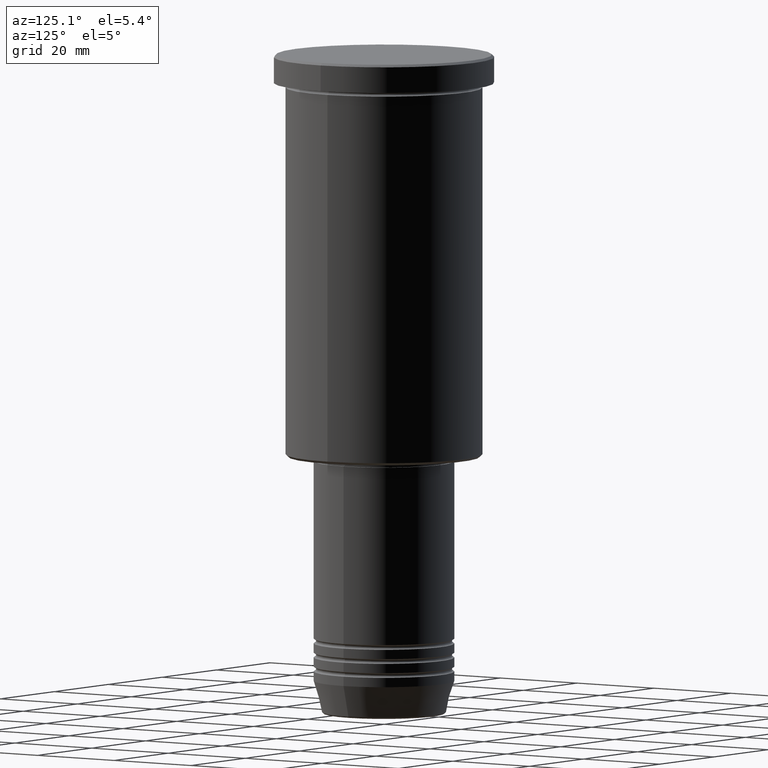
[diagram: clean part render]
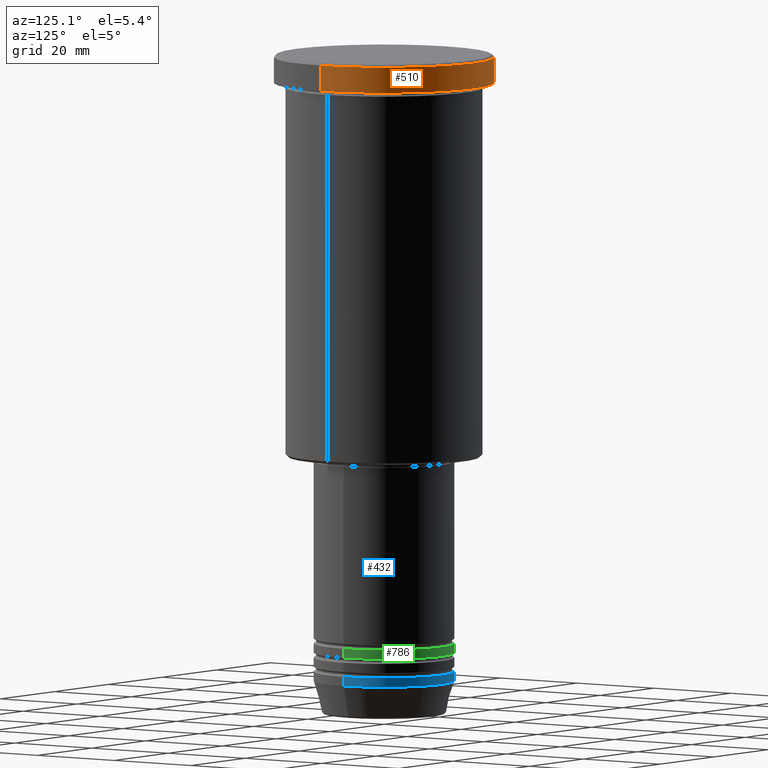
[diagram: same view with three faces highlighted in distinct colors, each labeled with its STEP entity id]
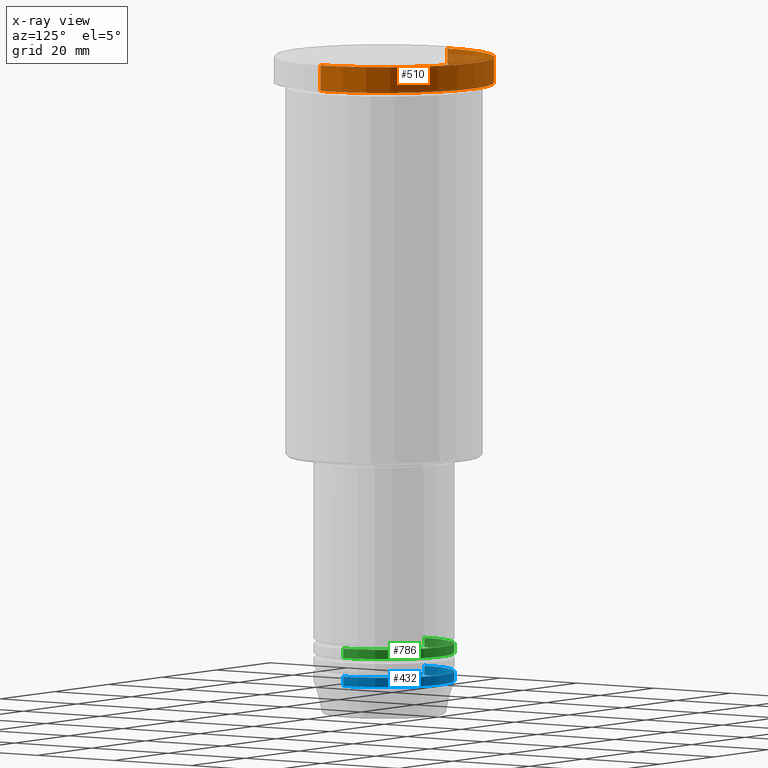
[diagram: x-ray of the same camera — body ghosted, the three highlighted faces saturated]
A machine part, auxiliary view with three faces highlighted in distinct colors.
The next image is the same camera in x-ray (body ghosted, the three faces saturated) — at least one of them is partly hidden behind the body in this view.
Their STEP definitions:

[orange] entity #510 — the highlighted cylindrical surface (partial cylindrical patch) has radius 23.5 mm, axis along (-0, -0, 1).
#2 = CARTESIAN_POINT ( 'NONE',  ( -23.50000000000000000, 2.877919977996280320E-15, -0.4999999999999726885 ) ) ;
#48 = VERTEX_POINT ( 'NONE', #2 ) ;
#54 = VERTEX_POINT ( 'NONE', #271 ) ;
#69 = FACE_OUTER_BOUND ( 'NONE', #240, .T. ) ;
#88 = DIRECTION ( 'NONE',  ( 1.000000000000000000, 0.000000000000000000, 0.000000000000000000 ) ) ;
#91 = CARTESIAN_POINT ( 'NONE',  ( 23.50000000000000000, 0.000000000000000000, 0.000000000000000000 ) ) ;
#98 = CARTESIAN_POINT ( 'NONE',  ( 23.50000000000000000, 0.000000000000000000, -5.999999999999994671 ) ) ;
#168 = VERTEX_POINT ( 'NONE', #688 ) ;
#185 = EDGE_CURVE ( 'NONE', #48, #168, #498, .T. ) ;
#240 = EDGE_LOOP ( 'NONE', ( #625, #963, #356, #705 ) ) ;
#271 = CARTESIAN_POINT ( 'NONE',  ( -23.50000000000000000, 2.877919977996280320E-15, -5.999999999999994671 ) ) ;
#349 = DIRECTION ( 'NONE',  ( -0.000000000000000000, -0.000000000000000000, 1.000000000000000000 ) ) ;
#356 = ORIENTED_EDGE ( 'NONE', *, *, #185, .T. ) ;
#357 = DIRECTION ( 'NONE',  ( 0.000000000000000000, 0.000000000000000000, -1.000000000000000000 ) ) ;
#395 = VERTEX_POINT ( 'NONE', #98 ) ;
#450 = DIRECTION ( 'NONE',  ( -0.000000000000000000, -0.000000000000000000, 1.000000000000000000 ) ) ;
#487 = AXIS2_PLACEMENT_3D ( 'NONE', #879, #349, #88 ) ;
#498 = CIRCLE ( 'NONE', #742, 23.50000000000000000 ) ;
#510 = ADVANCED_FACE ( 'NONE', ( #69 ), #702, .T. ) ;
#514 = CARTESIAN_POINT ( 'NONE',  ( -23.50000000000000000, 2.877919977996280320E-15, 0.000000000000000000 ) ) ;
#595 = DIRECTION ( 'NONE',  ( 1.000000000000000000, 0.000000000000000000, 0.000000000000000000 ) ) ;
#596 = EDGE_CURVE ( 'NONE', #54, #48, #955, .T. ) ;
#615 = CARTESIAN_POINT ( 'NONE',  ( 0.000000000000000000, 0.000000000000000000, -0.4999999999999726885 ) ) ;
#625 = ORIENTED_EDGE ( 'NONE', *, *, #902, .T. ) ;
#688 = CARTESIAN_POINT ( 'NONE',  ( 23.50000000000000000, 0.000000000000000000, -0.4999999999999726885 ) ) ;
#702 = CYLINDRICAL_SURFACE ( 'NONE', #1151, 23.50000000000000000 ) ;
#705 = ORIENTED_EDGE ( 'NONE', *, *, #857, .F. ) ;
#742 = AXIS2_PLACEMENT_3D ( 'NONE', #615, #357, #890 ) ;
#783 = CARTESIAN_POINT ( 'NONE',  ( 0.000000000000000000, 0.000000000000000000, 0.000000000000000000 ) ) ;
#846 = DIRECTION ( 'NONE',  ( -0.000000000000000000, -0.000000000000000000, 1.000000000000000000 ) ) ;
#857 = EDGE_CURVE ( 'NONE', #395, #168, #994, .T. ) ;
#879 = CARTESIAN_POINT ( 'NONE',  ( 0.000000000000000000, 0.000000000000000000, -5.999999999999994671 ) ) ;
#890 = DIRECTION ( 'NONE',  ( 1.000000000000000000, 0.000000000000000000, 0.000000000000000000 ) ) ;
#902 = EDGE_CURVE ( 'NONE', #395, #54, #1148, .T. ) ;
#950 = VECTOR ( 'NONE', #961, 1000.000000000000000 ) ;
#955 = LINE ( 'NONE', #514, #950 ) ;
#961 = DIRECTION ( 'NONE',  ( -0.000000000000000000, -0.000000000000000000, 1.000000000000000000 ) ) ;
#963 = ORIENTED_EDGE ( 'NONE', *, *, #596, .T. ) ;
#990 = VECTOR ( 'NONE', #450, 1000.000000000000000 ) ;
#994 = LINE ( 'NONE', #91, #990 ) ;
#1148 = CIRCLE ( 'NONE', #487, 23.50000000000000000 ) ;
#1151 = AXIS2_PLACEMENT_3D ( 'NONE', #783, #846, #595 ) ;

[blue] entity #432 — the highlighted cylindrical surface (partial cylindrical patch) has radius 15 mm, axis along (-0, -0, 1).
#62 = AXIS2_PLACEMENT_3D ( 'NONE', #760, #849, #1039 ) ;
#80 = ORIENTED_EDGE ( 'NONE', *, *, #508, .F. ) ;
#131 = DIRECTION ( 'NONE',  ( 1.000000000000000000, 0.000000000000000000, 0.000000000000000000 ) ) ;
#154 = VERTEX_POINT ( 'NONE', #675 ) ;
#162 = CIRCLE ( 'NONE', #926, 15.00000000000000000 ) ;
#215 = CYLINDRICAL_SURFACE ( 'NONE', #807, 15.00000000000000000 ) ;
#225 = ORIENTED_EDGE ( 'NONE', *, *, #369, .T. ) ;
#234 = VECTOR ( 'NONE', #485, 1000.000000000000000 ) ;
#255 = CIRCLE ( 'NONE', #62, 15.00000000000000000 ) ;
#339 = CARTESIAN_POINT ( 'NONE',  ( -15.00000000000000000, 1.836970198721029589E-15, -132.0000000000000000 ) ) ;
#358 = ORIENTED_EDGE ( 'NONE', *, *, #1053, .T. ) ;
#369 = EDGE_CURVE ( 'NONE', #154, #795, #728, .T. ) ;
#403 = VECTOR ( 'NONE', #552, 1000.000000000000000 ) ;
#432 = ADVANCED_FACE ( 'NONE', ( #914 ), #215, .T. ) ;
#463 = DIRECTION ( 'NONE',  ( -0.000000000000000000, -0.000000000000000000, 1.000000000000000000 ) ) ;
#485 = DIRECTION ( 'NONE',  ( -0.000000000000000000, -0.000000000000000000, 1.000000000000000000 ) ) ;
#508 = EDGE_CURVE ( 'NONE', #672, #895, #1059, .T. ) ;
#552 = DIRECTION ( 'NONE',  ( -0.000000000000000000, -0.000000000000000000, 1.000000000000000000 ) ) ;
#639 = CARTESIAN_POINT ( 'NONE',  ( -15.00000000000000000, 1.836970198721029589E-15, 0.000000000000000000 ) ) ;
#672 = VERTEX_POINT ( 'NONE', #1010 ) ;
#675 = CARTESIAN_POINT ( 'NONE',  ( -15.00000000000000000, 1.836970198721029589E-15, -134.0000000000000000 ) ) ;
#728 = LINE ( 'NONE', #639, #403 ) ;
#759 = DIRECTION ( 'NONE',  ( -0.000000000000000000, -0.000000000000000000, 1.000000000000000000 ) ) ;
#760 = CARTESIAN_POINT ( 'NONE',  ( 0.000000000000000000, 0.000000000000000000, -134.0000000000000000 ) ) ;
#795 = VERTEX_POINT ( 'NONE', #339 ) ;
#807 = AXIS2_PLACEMENT_3D ( 'NONE', #935, #463, #131 ) ;
#841 = EDGE_LOOP ( 'NONE', ( #358, #225, #1064, #80 ) ) ;
#849 = DIRECTION ( 'NONE',  ( -0.000000000000000000, -0.000000000000000000, 1.000000000000000000 ) ) ;
#895 = VERTEX_POINT ( 'NONE', #964 ) ;
#914 = FACE_OUTER_BOUND ( 'NONE', #841, .T. ) ;
#926 = AXIS2_PLACEMENT_3D ( 'NONE', #1030, #759, #1143 ) ;
#935 = CARTESIAN_POINT ( 'NONE',  ( 0.000000000000000000, 0.000000000000000000, 0.000000000000000000 ) ) ;
#964 = CARTESIAN_POINT ( 'NONE',  ( 15.00000000000000000, 0.000000000000000000, -132.0000000000000000 ) ) ;
#1010 = CARTESIAN_POINT ( 'NONE',  ( 15.00000000000000000, 0.000000000000000000, -134.0000000000000000 ) ) ;
#1030 = CARTESIAN_POINT ( 'NONE',  ( 0.000000000000000000, 0.000000000000000000, -132.0000000000000000 ) ) ;
#1039 = DIRECTION ( 'NONE',  ( 1.000000000000000000, 0.000000000000000000, 0.000000000000000000 ) ) ;
#1048 = EDGE_CURVE ( 'NONE', #895, #795, #162, .T. ) ;
#1053 = EDGE_CURVE ( 'NONE', #672, #154, #255, .T. ) ;
#1059 = LINE ( 'NONE', #1139, #234 ) ;
#1064 = ORIENTED_EDGE ( 'NONE', *, *, #1048, .F. ) ;
#1139 = CARTESIAN_POINT ( 'NONE',  ( 15.00000000000000000, 0.000000000000000000, 0.000000000000000000 ) ) ;
#1143 = DIRECTION ( 'NONE',  ( 1.000000000000000000, 0.000000000000000000, 0.000000000000000000 ) ) ;

[green] entity #786 — the highlighted cylindrical surface (partial cylindrical patch) has radius 15 mm, axis along (-0, -0, 1).
#23 = DIRECTION ( 'NONE',  ( 1.000000000000000000, 0.000000000000000000, 0.000000000000000000 ) ) ;
#33 = EDGE_CURVE ( 'NONE', #416, #313, #429, .T. ) ;
#175 = ORIENTED_EDGE ( 'NONE', *, *, #967, .T. ) ;
#184 = VERTEX_POINT ( 'NONE', #422 ) ;
#195 = CIRCLE ( 'NONE', #669, 15.00000000000000000 ) ;
#202 = DIRECTION ( 'NONE',  ( -0.000000000000000000, -0.000000000000000000, 1.000000000000000000 ) ) ;
#217 = ORIENTED_EDGE ( 'NONE', *, *, #1178, .F. ) ;
#293 = DIRECTION ( 'NONE',  ( -0.000000000000000000, -0.000000000000000000, 1.000000000000000000 ) ) ;
#302 = DIRECTION ( 'NONE',  ( -0.000000000000000000, -0.000000000000000000, 1.000000000000000000 ) ) ;
#313 = VERTEX_POINT ( 'NONE', #511 ) ;
#321 = CARTESIAN_POINT ( 'NONE',  ( 0.000000000000000000, 0.000000000000000000, 0.000000000000000000 ) ) ;
#338 = CARTESIAN_POINT ( 'NONE',  ( 0.000000000000000000, 0.000000000000000000, -127.9999999999999716 ) ) ;
#410 = CYLINDRICAL_SURFACE ( 'NONE', #468, 15.00000000000000000 ) ;
#416 = VERTEX_POINT ( 'NONE', #749 ) ;
#422 = CARTESIAN_POINT ( 'NONE',  ( -15.00000000000000000, 1.836970198721029589E-15, -127.9999999999999716 ) ) ;
#429 = LINE ( 'NONE', #792, #1057 ) ;
#468 = AXIS2_PLACEMENT_3D ( 'NONE', #321, #603, #1126 ) ;
#511 = CARTESIAN_POINT ( 'NONE',  ( 15.00000000000000000, 0.000000000000000000, -125.9999999999999716 ) ) ;
#530 = EDGE_LOOP ( 'NONE', ( #175, #993, #217, #662 ) ) ;
#566 = DIRECTION ( 'NONE',  ( 1.000000000000000000, 0.000000000000000000, 0.000000000000000000 ) ) ;
#571 = CIRCLE ( 'NONE', #946, 15.00000000000000000 ) ;
#603 = DIRECTION ( 'NONE',  ( -0.000000000000000000, -0.000000000000000000, 1.000000000000000000 ) ) ;
#614 = VERTEX_POINT ( 'NONE', #1001 ) ;
#620 = CARTESIAN_POINT ( 'NONE',  ( -15.00000000000000000, 1.836970198721029589E-15, 0.000000000000000000 ) ) ;
#647 = DIRECTION ( 'NONE',  ( -0.000000000000000000, -0.000000000000000000, 1.000000000000000000 ) ) ;
#662 = ORIENTED_EDGE ( 'NONE', *, *, #33, .F. ) ;
#669 = AXIS2_PLACEMENT_3D ( 'NONE', #1105, #293, #23 ) ;
#749 = CARTESIAN_POINT ( 'NONE',  ( 15.00000000000000000, 0.000000000000000000, -127.9999999999999716 ) ) ;
#786 = ADVANCED_FACE ( 'NONE', ( #1002 ), #410, .T. ) ;
#792 = CARTESIAN_POINT ( 'NONE',  ( 15.00000000000000000, 0.000000000000000000, 0.000000000000000000 ) ) ;
#871 = VECTOR ( 'NONE', #202, 1000.000000000000000 ) ;
#946 = AXIS2_PLACEMENT_3D ( 'NONE', #338, #302, #566 ) ;
#967 = EDGE_CURVE ( 'NONE', #416, #184, #571, .T. ) ;
#989 = EDGE_CURVE ( 'NONE', #184, #614, #1083, .T. ) ;
#993 = ORIENTED_EDGE ( 'NONE', *, *, #989, .T. ) ;
#1001 = CARTESIAN_POINT ( 'NONE',  ( -15.00000000000000000, 1.836970198721029589E-15, -125.9999999999999716 ) ) ;
#1002 = FACE_OUTER_BOUND ( 'NONE', #530, .T. ) ;
#1057 = VECTOR ( 'NONE', #647, 1000.000000000000000 ) ;
#1083 = LINE ( 'NONE', #620, #871 ) ;
#1105 = CARTESIAN_POINT ( 'NONE',  ( 0.000000000000000000, 0.000000000000000000, -125.9999999999999716 ) ) ;
#1126 = DIRECTION ( 'NONE',  ( 1.000000000000000000, 0.000000000000000000, 0.000000000000000000 ) ) ;
#1178 = EDGE_CURVE ( 'NONE', #313, #614, #195, .T. ) ;